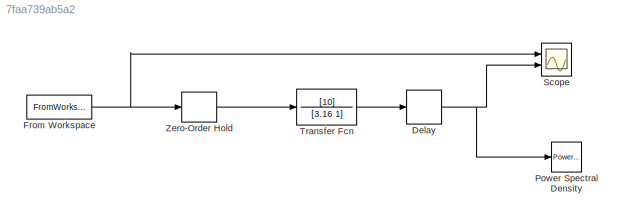
MODEL slx_7faa739ab5a2
KIND model
CONFIG AbsTol = auto
CONFIG FixedStep = auto
CONFIG MaxStep = auto
CONFIG MinStep = auto
CONFIG RelTol = 1e-3
CONFIG SampleTimeConstraint = Unconstrained
CONFIG Solver = ode45
CONFIG SolverMode = Auto
CONFIG SolverName = ode45
CONFIG StartTime = 0.0
CONFIG StopTime = 300
BLOCK [Delay] Delay
  DelayLength = 56
  InputPortMap = u0
  Ports = [1, 1]
  SampleTime = 0.01
BLOCK [FromWorkspace] From Workspace
  SampleTime = 0.01
  VariableName = simin1
  ZeroCross = on
BLOCK [Reference] Power Spectral Density  REF=simulink_extras/Additional
Sinks/Power Spectral
Density
  HowOften = 64
  Ports = [1]
  SourceBlock = simulink_extras/Additional\nSinks/Power Spectral\nDensity
  SourceType = Power Spectral Density
  fftpts = 512
  npts = 128
  sampleT = 0.1
BLOCK [Scope] Scope
  DataFormat = StructureWithTime
  Floating = off
  LimitDataPoints = off
  NumInputPorts = 2
  Ports = [2]
  SaveName = datos
  SaveToWorkspace = on
  YMax = 5~5
  YMin = -5~-5
BLOCK [TransferFcn] Transfer Fcn
  Denominator = [3.16 1]
  Numerator = [10]
BLOCK [ZeroOrderHold] Zero-Order Hold
  SampleTime = 0.01
NET Delay:1 -> Power Spectral Density:1, Scope:2
NET From Workspace:1 -> Scope:1, Zero-Order Hold:1
LINE Transfer Fcn:1 -> Delay:1
LINE Zero-Order Hold:1 -> Transfer Fcn:1
note: NET lines group one-source signal fan-out (src -> all destinations, sorted); 1:1 wires keep LINE
